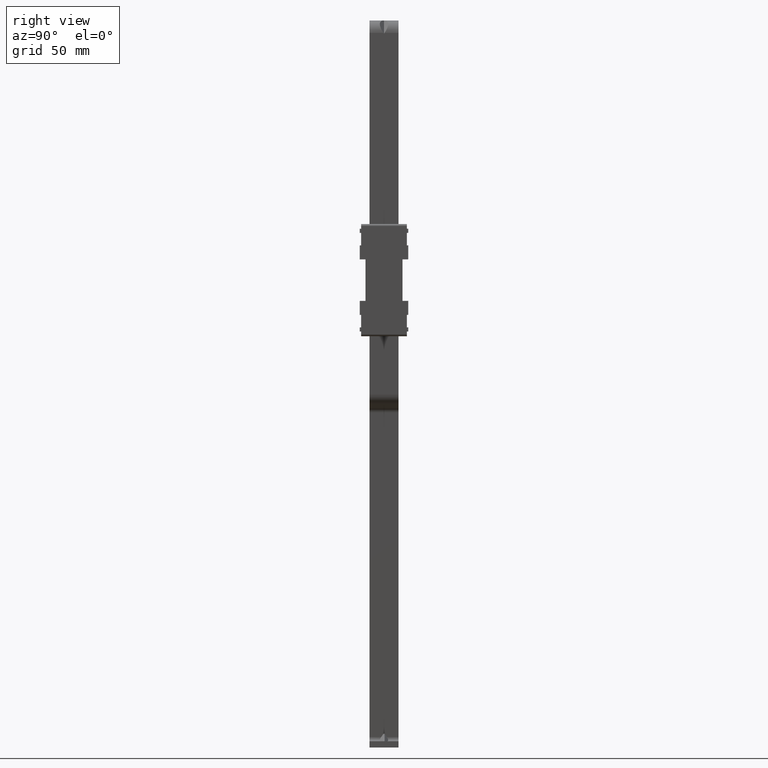
[diagram: clean part render]
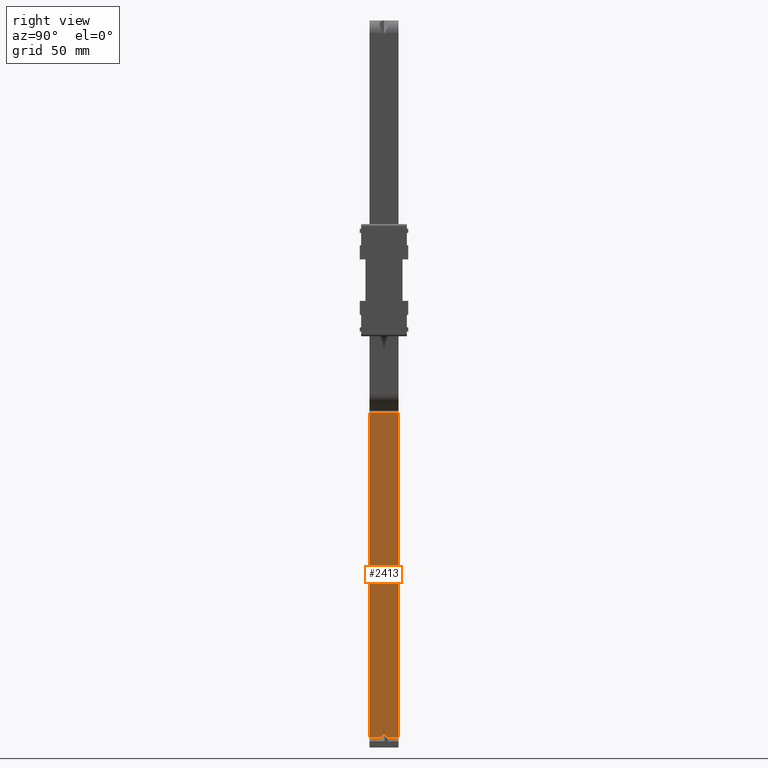
[diagram: same view with one face highlighted and labeled with its STEP entity id]
A machine part, right view. The second image highlights one B-rep face of the part: STEP entity #2413.
In plain terms, the highlighted face is a freeform B-spline surface patch.
Its self-contained STEP definition (entity closure, byte-faithful):
#142=CARTESIAN_POINT('',(-13.900000278754501,-0.353553390593398,-218.493530387932510));
#143=VERTEX_POINT('',#142);
#144=CARTESIAN_POINT('',(-13.900000278754501,0.353553390593287,-218.493530387932510));
#145=VERTEX_POINT('',#144);
#146=CARTESIAN_POINT('',(-13.900000278754501,-0.353553390593294,-218.493530387932510));
#147=CARTESIAN_POINT('',(-13.900000278754504,-0.207106781186567,-218.286423606745930));
#148=CARTESIAN_POINT('',(-13.900000278754501,9.324801E-016,-218.286423606745900));
#149=CARTESIAN_POINT('',(-13.900000278754504,0.207106781186556,-218.286423606745930));
#150=CARTESIAN_POINT('',(-13.900000278754501,0.353553390593287,-218.493530387932510));
#158=(BOUNDED_CURVE()B_SPLINE_CURVE(2,(#146,#147,#148,#149,#150),.UNSPECIFIED.,.F.,.U.)B_SPLINE_CURVE_WITH_KNOTS((3,2,3),(0.0,0.500000000000000,1.0),.UNSPECIFIED.)CURVE()GEOMETRIC_REPRESENTATION_ITEM()RATIONAL_B_SPLINE_CURVE((1.0,0.923879532511359,1.0,0.923879532511359,1.0))REPRESENTATION_ITEM(''));
#159=EDGE_CURVE('',#143,#145,#158,.T.);
#198=CARTESIAN_POINT('',(-13.900000278754399,1.418795657808224,-220.000010449440990));
#199=VERTEX_POINT('',#198);
#200=CARTESIAN_POINT('',(-13.900000278754399,1.418795657808224,-220.000010449440990));
#201=CARTESIAN_POINT('',(-13.900000278754501,0.353553390593287,-218.493530387932510));
#202=QUASI_UNIFORM_CURVE('',1,(#200,#201),.UNSPECIFIED.,.F.,.U.);
#203=EDGE_CURVE('',#199,#145,#202,.T.);
#244=CARTESIAN_POINT('',(-13.900000278754399,-1.418795657808336,-220.000010449440990));
#245=VERTEX_POINT('',#244);
#246=CARTESIAN_POINT('',(-13.900000278754399,-1.418795657808336,-220.000010449440990));
#247=CARTESIAN_POINT('',(-13.900000278754501,-0.353553390593398,-218.493530387932510));
#248=QUASI_UNIFORM_CURVE('',1,(#246,#247),.UNSPECIFIED.,.F.,.U.);
#249=EDGE_CURVE('',#245,#143,#248,.T.);
#1603=CARTESIAN_POINT('',(-13.900000278754399,7.000000332482160,-220.000010449440990));
#1604=VERTEX_POINT('',#1603);
#1605=CARTESIAN_POINT('',(-13.900000278754399,7.000000332482160,-220.000010449440990));
#1606=CARTESIAN_POINT('',(-13.900000278754399,1.418795657808224,-220.000010449440990));
#1607=QUASI_UNIFORM_CURVE('',1,(#1605,#1606),.UNSPECIFIED.,.F.,.U.);
#1608=EDGE_CURVE('',#1604,#199,#1607,.T.);
#1993=CARTESIAN_POINT('',(-13.900000278754520,-7.000000332482160,-63.742643714732608));
#1994=VERTEX_POINT('',#1993);
#2008=CARTESIAN_POINT('',(-13.900000278754520,7.000000332482160,-63.742643714732608));
#2009=VERTEX_POINT('',#2008);
#2010=CARTESIAN_POINT('',(-13.900000278754520,7.000000332482160,-63.742643714732608));
#2011=CARTESIAN_POINT('',(-13.900000278754520,-7.000000332482160,-63.742643714732608));
#2012=QUASI_UNIFORM_CURVE('',1,(#2010,#2011),.UNSPECIFIED.,.F.,.U.);
#2013=EDGE_CURVE('',#2009,#1994,#2012,.T.);
#2065=CARTESIAN_POINT('',(-13.900000278754399,-7.000000332482160,-220.000010449440990));
#2066=VERTEX_POINT('',#2065);
#2082=CARTESIAN_POINT('',(-13.900000278754399,-7.000000332482160,-220.000010449440990));
#2083=CARTESIAN_POINT('',(-13.900000278754520,-7.000000332482160,-63.742643714732608));
#2084=QUASI_UNIFORM_CURVE('',1,(#2082,#2083),.UNSPECIFIED.,.F.,.U.);
#2085=EDGE_CURVE('',#2066,#1994,#2084,.T.);
#2308=CARTESIAN_POINT('',(-13.900000278754399,7.000000332482160,-220.000010449440990));
#2309=CARTESIAN_POINT('',(-13.900000278754520,7.000000332482160,-63.742643714732608));
#2310=QUASI_UNIFORM_CURVE('',1,(#2308,#2309),.UNSPECIFIED.,.F.,.U.);
#2311=EDGE_CURVE('',#1604,#2009,#2310,.T.);
#2384=CARTESIAN_POINT('',(-13.900000278754399,-1.418795657808336,-220.000010449440990));
#2385=CARTESIAN_POINT('',(-13.900000278754399,-7.000000332482160,-220.000010449440990));
#2386=QUASI_UNIFORM_CURVE('',1,(#2384,#2385),.UNSPECIFIED.,.F.,.U.);
#2387=EDGE_CURVE('',#245,#2066,#2386,.T.);
#2398=CARTESIAN_POINT('',(-13.900000278754501,-7.699300469984400,-55.937590016023371));
#2399=CARTESIAN_POINT('',(-13.900000278754501,-7.699300469984400,-227.805069736349200));
#2400=CARTESIAN_POINT('',(-13.900000278754501,7.699300720323920,-55.937590016023371));
#2401=CARTESIAN_POINT('',(-13.900000278754501,7.699300720323920,-227.805069736349200));
#2402=B_SPLINE_SURFACE_WITH_KNOTS('',1,1,((#2398,#2400),(#2399,#2401)),.UNSPECIFIED.,.F.,.F.,.U.,(2,2),(2,2),(0.0,171.867479720325800),(0.0,15.398601190308320),.UNSPECIFIED.);
#2403=ORIENTED_EDGE('',*,*,#2387,.F.);
#2404=ORIENTED_EDGE('',*,*,#249,.T.);
#2405=ORIENTED_EDGE('',*,*,#159,.T.);
#2406=ORIENTED_EDGE('',*,*,#203,.F.);
#2407=ORIENTED_EDGE('',*,*,#1608,.F.);
#2408=ORIENTED_EDGE('',*,*,#2311,.T.);
#2409=ORIENTED_EDGE('',*,*,#2013,.T.);
#2410=ORIENTED_EDGE('',*,*,#2085,.F.);
#2411=EDGE_LOOP('',(#2403,#2404,#2405,#2406,#2407,#2408,#2409,#2410));
#2412=FACE_OUTER_BOUND('',#2411,.T.);
#2413=ADVANCED_FACE('',(#2412),#2402,.T.);